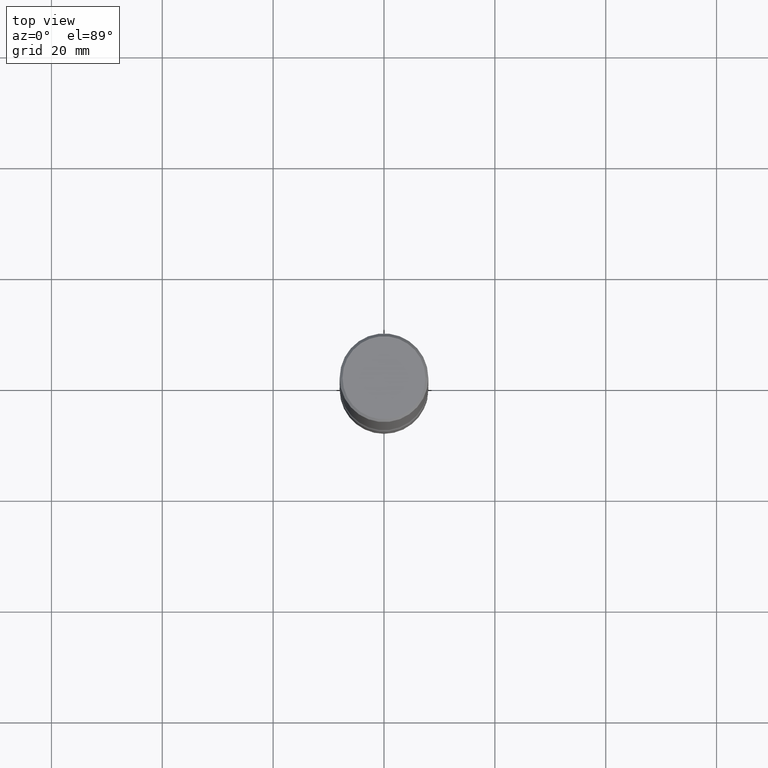
[diagram: clean part render]
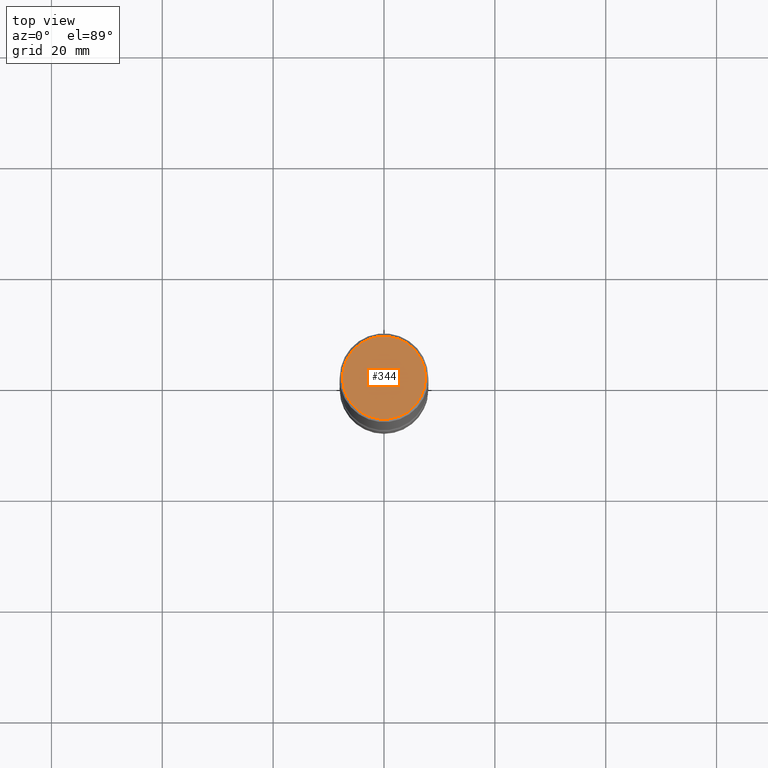
[diagram: same view with one face highlighted and labeled with its STEP entity id]
A machine part, top view. The second image highlights one B-rep face of the part: STEP entity #344.
In plain terms, the highlighted planar face has unit normal (-0, 0, 1).
Its self-contained STEP definition (entity closure, byte-faithful):
#21 = DIRECTION ( 'NONE',  ( 2.445468806185136597E-29, -3.491481338843145583E-15, -1.000000000000000000 ) ) ;
#41 = DIRECTION ( 'NONE',  ( 2.445468806185136597E-29, -3.491481338843145583E-15, -1.000000000000000000 ) ) ;
#55 = CIRCLE ( 'NONE', #240, 0.2949499999999996014 ) ;
#66 = CIRCLE ( 'NONE', #532, 0.2949499999999996014 ) ;
#69 = EDGE_CURVE ( 'NONE', #129, #432, #55, .T. ) ;
#123 = CARTESIAN_POINT ( 'NONE',  ( 0.000000000000000000, 0.000000000000000000, 0.000000000000000000 ) ) ;
#129 = VERTEX_POINT ( 'NONE', #331 ) ;
#147 = ORIENTED_EDGE ( 'NONE', *, *, #422, .F. ) ;
#222 = CARTESIAN_POINT ( 'NONE',  ( -0.2949499999999996014, 2.059624841783561697E-15, -1.438228340021009396E-29 ) ) ;
#234 = EDGE_LOOP ( 'NONE', ( #147, #444 ) ) ;
#240 = AXIS2_PLACEMENT_3D ( 'NONE', #408, #21, #322 ) ;
#253 = DIRECTION ( 'NONE',  ( -2.438088387897960049E-29, 3.491481338843145188E-15, 1.000000000000000000 ) ) ;
#322 = DIRECTION ( 'NONE',  ( -1.000000000000000000, 6.982962677686266711E-15, -4.876176775795935793E-29 ) ) ;
#331 = CARTESIAN_POINT ( 'NONE',  ( 0.2949499999999996014, -2.127023677808858103E-15, 1.463937372219019813E-29 ) ) ;
#335 = DIRECTION ( 'NONE',  ( 1.000000000000000000, -6.982962677686265922E-15, 4.876176775795935793E-29 ) ) ;
#344 = ADVANCED_FACE ( 'NONE', ( #385 ), #472, .T. ) ;
#385 = FACE_OUTER_BOUND ( 'NONE', #234, .T. ) ;
#408 = CARTESIAN_POINT ( 'NONE',  ( 0.000000000000000000, 0.000000000000000000, 0.000000000000000000 ) ) ;
#422 = EDGE_CURVE ( 'NONE', #432, #129, #66, .T. ) ;
#432 = VERTEX_POINT ( 'NONE', #222 ) ;
#444 = ORIENTED_EDGE ( 'NONE', *, *, #69, .F. ) ;
#472 = PLANE ( 'NONE',  #474 ) ;
#474 = AXIS2_PLACEMENT_3D ( 'NONE', #557, #253, #335 ) ;
#526 = DIRECTION ( 'NONE',  ( -1.000000000000000000, 6.982962677686266711E-15, -4.876176775795935793E-29 ) ) ;
#532 = AXIS2_PLACEMENT_3D ( 'NONE', #123, #41, #526 ) ;
#557 = CARTESIAN_POINT ( 'NONE',  ( 2.059624841783561302E-15, 0.2949499999999996014, -1.023409652156633955E-15 ) ) ;